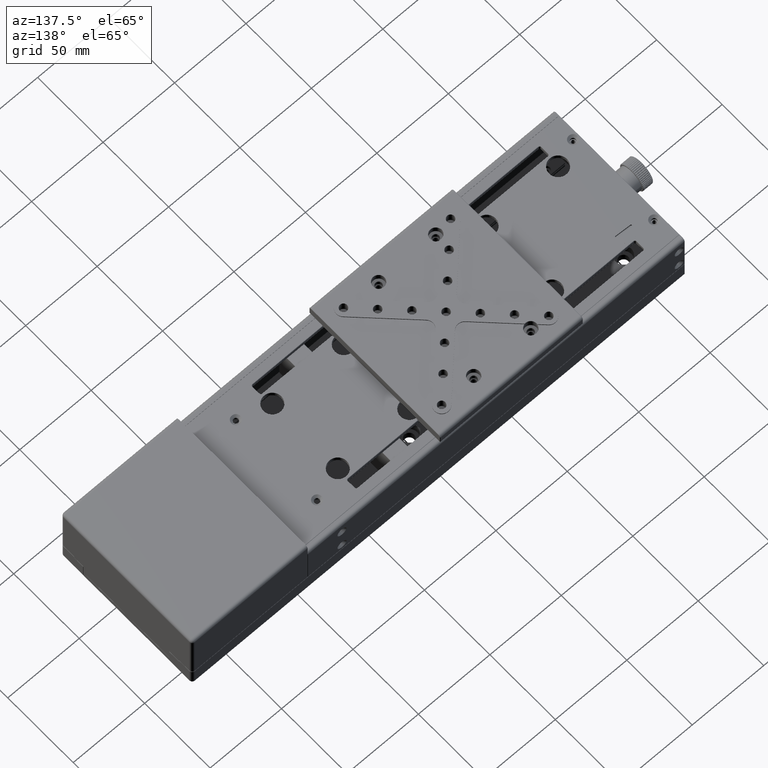
[diagram: clean part render]
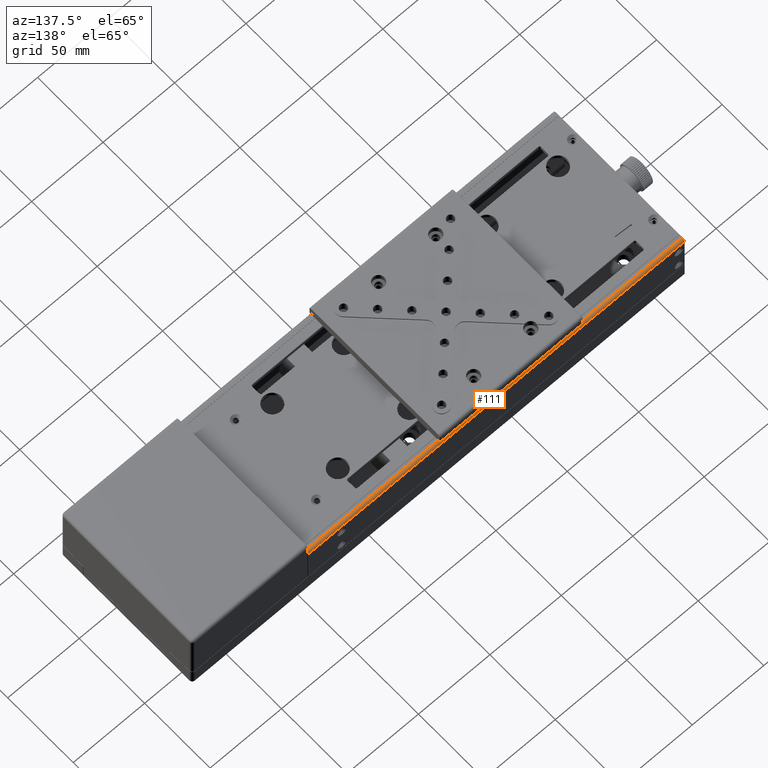
[diagram: same view with one face highlighted and labeled with its STEP entity id]
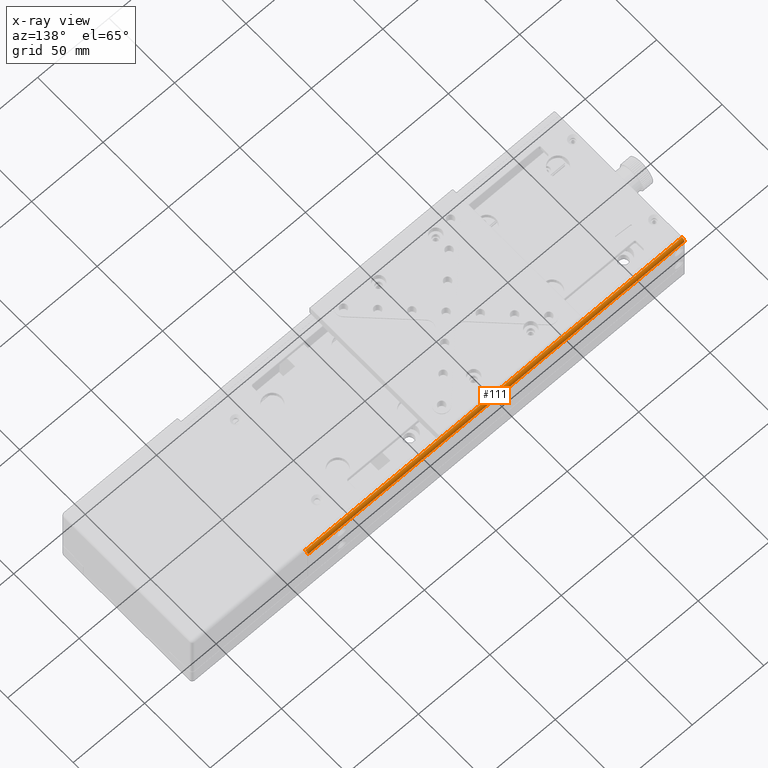
[diagram: x-ray of the same camera — body ghosted, the highlighted face saturated]
A machine part, auxiliary view. The second image highlights one B-rep face of the part: STEP entity #111.
The next image is the same camera in x-ray: the body ghosted, the highlighted face saturated — about 0% of this face is hidden behind the body in this view.
In plain terms, the highlighted cylindrical surface (edge-blend (fillet) strip) has radius 2 mm, axis along (-1, 0, 0).
Its self-contained STEP definition (entity closure, byte-faithful):
#111 = ADVANCED_FACE ( 'NONE', ( #38929 ), #13101, .T. ) ;
#2848 = CIRCLE ( 'NONE', #69951, 2.000000000000001776 ) ;
#3038 = AXIS2_PLACEMENT_3D ( 'NONE', #29336, #6832, #35231 ) ;
#6517 = VECTOR ( 'NONE', #26903, 1000.000000000000000 ) ;
#6832 = DIRECTION ( 'NONE',  ( -1.000000000000000000, 0.000000000000000000, 1.402885900802285989E-16 ) ) ;
#8116 = ORIENTED_EDGE ( 'NONE', *, *, #28587, .T. ) ;
#9662 = VERTEX_POINT ( 'NONE', #55294 ) ;
#9933 = LINE ( 'NONE', #62542, #6517 ) ;
#11489 = LINE ( 'NONE', #22194, #51582 ) ;
#12745 = ORIENTED_EDGE ( 'NONE', *, *, #23595, .F. ) ;
#13101 = CYLINDRICAL_SURFACE ( 'NONE', #3038, 2.000000000000001776 ) ;
#14279 = CARTESIAN_POINT ( 'NONE',  ( -168.7607912002899866, 57.99424858742460032, 34.50000000000000000 ) ) ;
#22194 = CARTESIAN_POINT ( 'NONE',  ( -168.9607912002899752, 59.99424858742460032, 34.50000000000000000 ) ) ;
#22629 = EDGE_CURVE ( 'NONE', #39798, #9662, #2848, .T. ) ;
#23595 = EDGE_CURVE ( 'NONE', #39798, #49441, #9933, .T. ) ;
#24980 = DIRECTION ( 'NONE',  ( 1.000000000000000000, 0.000000000000000000, -1.402885900802285989E-16 ) ) ;
#26211 = ORIENTED_EDGE ( 'NONE', *, *, #53292, .F. ) ;
#26903 = DIRECTION ( 'NONE',  ( -1.000000000000000000, -1.402885900802285989E-16, 1.402885900802285989E-16 ) ) ;
#28587 = EDGE_CURVE ( 'NONE', #45885, #49441, #42865, .T. ) ;
#29336 = CARTESIAN_POINT ( 'NONE',  ( -168.9607912002899752, 57.99424858742460032, 34.50000000000000000 ) ) ;
#35231 = DIRECTION ( 'NONE',  ( 0.000000000000000000, -1.000000000000000000, 0.000000000000000000 ) ) ;
#38929 = FACE_OUTER_BOUND ( 'NONE', #46854, .T. ) ;
#39153 = DIRECTION ( 'NONE',  ( 1.000000000000000000, 1.402885900802285989E-16, -1.402885900802285989E-16 ) ) ;
#39798 = VERTEX_POINT ( 'NONE', #66303 ) ;
#41871 = CARTESIAN_POINT ( 'NONE',  ( 94.83920879970989404, 57.99424858742469979, 34.50000000000000000 ) ) ;
#42865 = CIRCLE ( 'NONE', #46403, 2.000000000000001776 ) ;
#45885 = VERTEX_POINT ( 'NONE', #56986 ) ;
#46403 = AXIS2_PLACEMENT_3D ( 'NONE', #14279, #24980, #63351 ) ;
#46854 = EDGE_LOOP ( 'NONE', ( #26211, #8116, #12745, #58258 ) ) ;
#47033 = DIRECTION ( 'NONE',  ( 0.000000000000000000, -1.000000000000000000, 0.000000000000000000 ) ) ;
#49441 = VERTEX_POINT ( 'NONE', #51859 ) ;
#51582 = VECTOR ( 'NONE', #39153, 1000.000000000000000 ) ;
#51859 = CARTESIAN_POINT ( 'NONE',  ( -168.7607912002899866, 57.99424858742460032, 36.50000000000000000 ) ) ;
#53292 = EDGE_CURVE ( 'NONE', #45885, #9662, #11489, .T. ) ;
#55294 = CARTESIAN_POINT ( 'NONE',  ( 94.83920879970989404, 59.99424858742469979, 34.50000000000000000 ) ) ;
#56986 = CARTESIAN_POINT ( 'NONE',  ( -168.7607912002899866, 59.99424858742460032, 34.50000000000000000 ) ) ;
#58258 = ORIENTED_EDGE ( 'NONE', *, *, #22629, .T. ) ;
#62542 = CARTESIAN_POINT ( 'NONE',  ( -168.9607912002899752, 57.99424858742460032, 36.50000000000000000 ) ) ;
#63351 = DIRECTION ( 'NONE',  ( 0.000000000000000000, 1.000000000000000000, 0.000000000000000000 ) ) ;
#66303 = CARTESIAN_POINT ( 'NONE',  ( 94.83920879970989404, 57.99424858742469979, 36.50000000000000000 ) ) ;
#69951 = AXIS2_PLACEMENT_3D ( 'NONE', #41871, #70233, #47033 ) ;
#70233 = DIRECTION ( 'NONE',  ( -1.000000000000000000, 0.000000000000000000, 1.402885900802285989E-16 ) ) ;